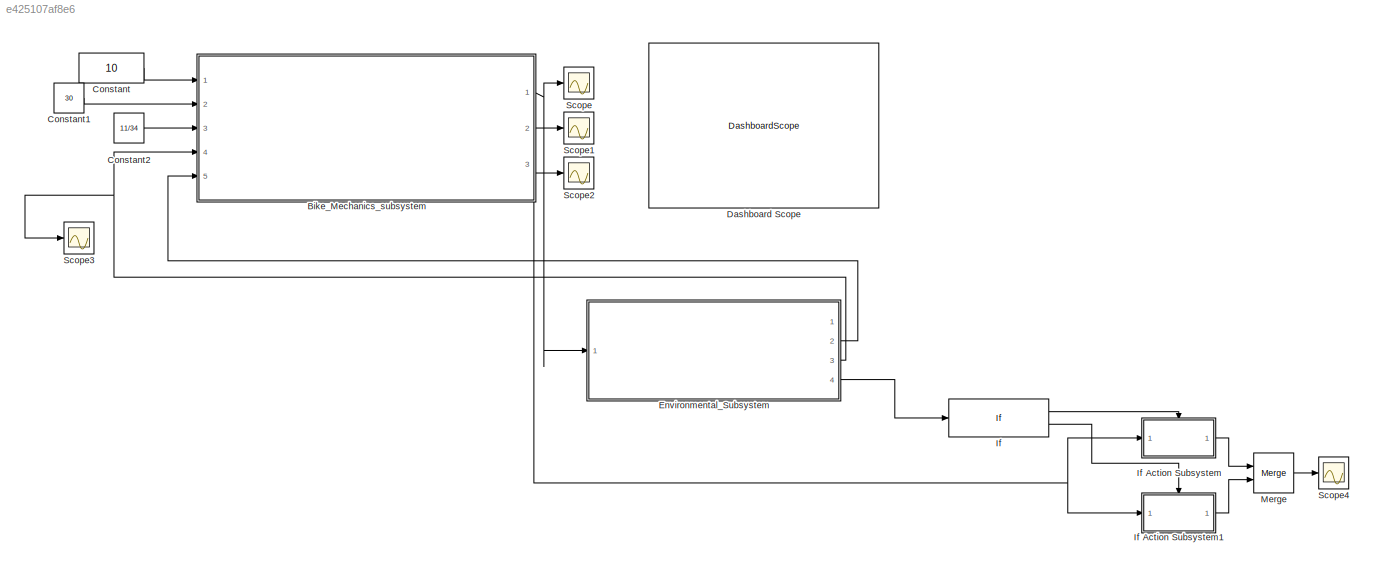
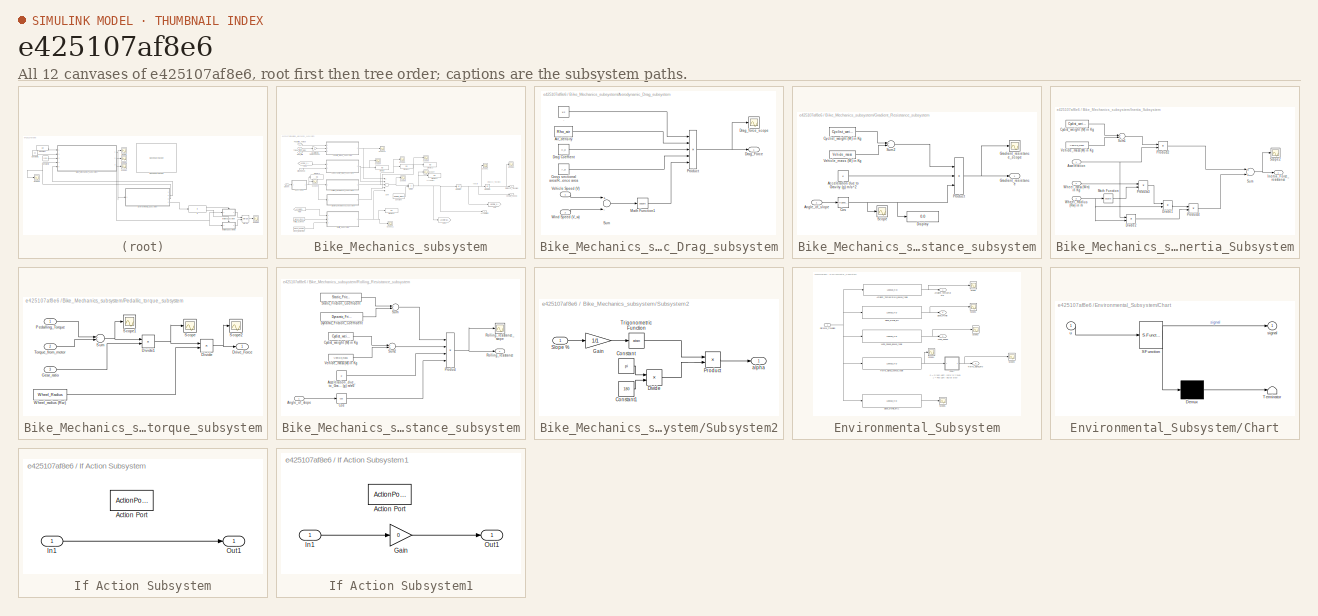
[diagram: thumbnail index - all 12 canvases of the model, root first then tree order]
MODEL slx_e425107af8e6
KIND model
CONFIG AbsTol = auto
CONFIG EnableMultiTasking = off
CONFIG FixedStep = auto
CONFIG InitFcn = Rho_air= 1.225;\nC_d=0.9;\nA_d= 0.4;\nStatic_Friction_Coefficient =0.0015;\nDynamic_Friction_Coefficient= 0.0015;\nCyclist_weight=85;\nVehicle_mass = 25;\ng = 9.81;\nWheel_mass = 0.20;\nWheel_Radius = 0.3;\n\n
CONFIG MaxStep = auto
CONFIG MinStep = auto
CONFIG RelTol = 1e-3
CONFIG SampleTimeConstraint = Unconstrained
CONFIG Solver = VariableStepAuto
CONFIG SolverName = VariableStepAuto
CONFIG StartTime = 0.0
CONFIG StopTime = 800
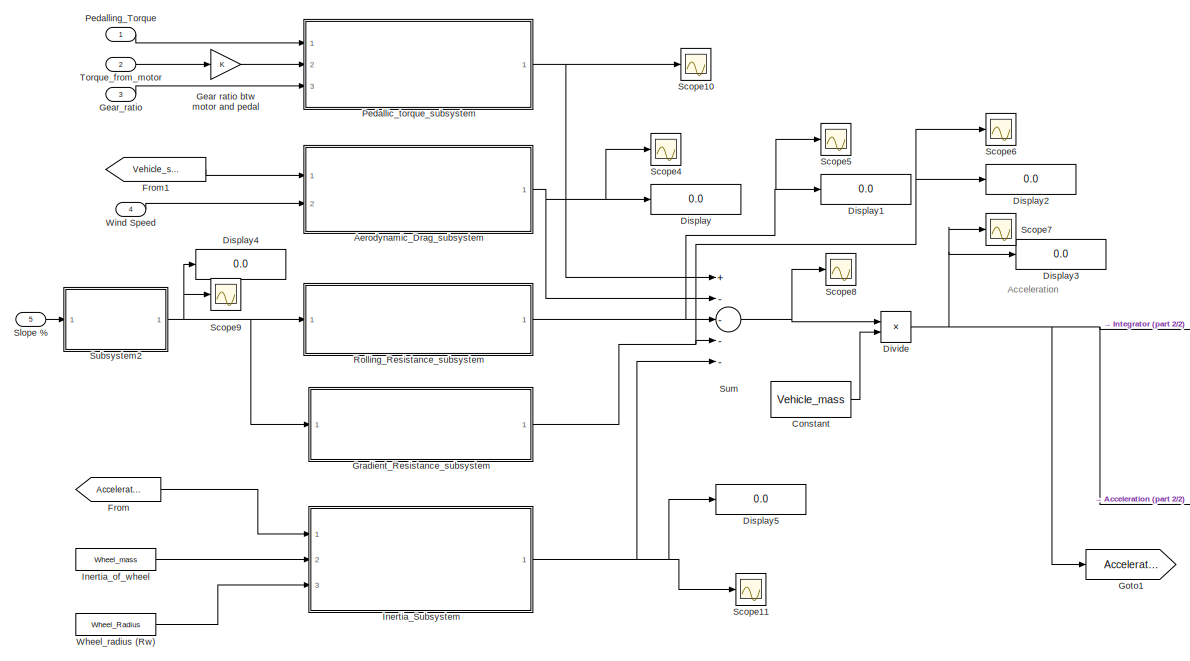
[diagram: Bike_Mechanics_subsystem - part 1/2, center side, full height]
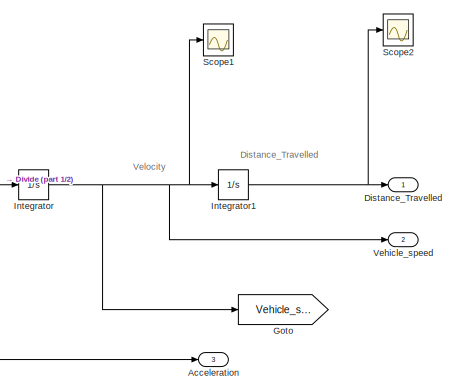
[diagram: Bike_Mechanics_subsystem - part 2/2, middle right region]
BLOCK [SubSystem] Bike_Mechanics_subsystem
  Ports = [5, 3]
  RequestExecContextInheritance = off
BLOCK [Outport] Bike_Mechanics_subsystem/Acceleration
  IconDisplay = Port number
  Port = 3
  VectorParamsAs1DForOutWhenUnconnected = off
BLOCK [SubSystem] Bike_Mechanics_subsystem/Aerodynamic_Drag_subsystem
  Ports = [2, 1]
  RequestExecContextInheritance = off
BLOCK [Constant] Bike_Mechanics_subsystem/Aerodynamic_Drag_subsystem/.
  Value = 1/2
BLOCK [Constant] Bike_Mechanics_subsystem/Aerodynamic_Drag_subsystem/Air_density
  Value = Rho_air
BLOCK [Constant] Bike_Mechanics_subsystem/Aerodynamic_Drag_subsystem/Cross sectional area//Reference area
  Value = A_d
BLOCK [Constant] Bike_Mechanics_subsystem/Aerodynamic_Drag_subsystem/Drag Coeffient
  Value = C_d
BLOCK [Outport] Bike_Mechanics_subsystem/Aerodynamic_Drag_subsystem/Drag_Force 
  IconDisplay = Port number
  VectorParamsAs1DForOutWhenUnconnected = off
BLOCK [Scope] Bike_Mechanics_subsystem/Aerodynamic_Drag_subsystem/Drag_force_scope
  Floating = off
  NumInputPorts = 1
  Ports = [1]
  ScopeSpecificationString = Simulink.scopes.TimeScopeBlockCfg('CurrentConfiguration', extmgr.ConfigurationSet(extmgr.Configuration('Core','General UI',true),extmgr.Configuration('Core','Source UI',true),extmgr.Configuration('Sources','WiredSimulink',true),extmgr.Configuration('Visuals','Time Domain',true,'SerializedDisplays',{struct('MinYLimReal','-15.22032','MaxYLimReal','136.98292','YLabelReal','','MinYLimMag','0.00000','M...<+1337ch>
BLOCK [Math] Bike_Mechanics_subsystem/Aerodynamic_Drag_subsystem/Math Function1
  Operator = square
  Ports = [1, 1]
BLOCK [Product] Bike_Mechanics_subsystem/Aerodynamic_Drag_subsystem/Product
  InputSameDT = off
  Inputs = 5
  OutDataTypeStr = Inherit: Inherit via internal rule
  Ports = [5, 1]
  RndMeth = Floor
  SaturateOnIntegerOverflow = off
BLOCK [Sum] Bike_Mechanics_subsystem/Aerodynamic_Drag_subsystem/Sum
  InputSameDT = off
  Inputs = +-
  OutDataTypeStr = Inherit: Inherit via internal rule
  Ports = [2, 1]
  SaturateOnIntegerOverflow = off
BLOCK [Inport] Bike_Mechanics_subsystem/Aerodynamic_Drag_subsystem/Vehicle Speed (V)
  IconDisplay = Port number
BLOCK [Inport] Bike_Mechanics_subsystem/Aerodynamic_Drag_subsystem/Wind Speed (V_w) 
  IconDisplay = Port number
  Port = 2
BLOCK [Constant] Bike_Mechanics_subsystem/Constant
  SampleTime = -1
  Value = Vehicle_mass
BLOCK [Display] Bike_Mechanics_subsystem/Display
  Decimation = 1
  Format = long
  Ports = [1]
BLOCK [Display] Bike_Mechanics_subsystem/Display1
  Decimation = 1
  Ports = [1]
BLOCK [Display] Bike_Mechanics_subsystem/Display2
  Decimation = 1
  Ports = [1]
BLOCK [Display] Bike_Mechanics_subsystem/Display3
  Decimation = 1
  Ports = [1]
BLOCK [Display] Bike_Mechanics_subsystem/Display4
  Decimation = 1
  Ports = [1]
BLOCK [Display] Bike_Mechanics_subsystem/Display5
  Decimation = 1
  Ports = [1]
BLOCK [Outport] Bike_Mechanics_subsystem/Distance_Travelled
  IconDisplay = Port number
  VectorParamsAs1DForOutWhenUnconnected = off
BLOCK [Product] Bike_Mechanics_subsystem/Divide
  InputSameDT = off
  Inputs = */
  OutDataTypeStr = Inherit: Inherit via internal rule
  Ports = [2, 1]
  RndMeth = Floor
  SaturateOnIntegerOverflow = off
BLOCK [From] Bike_Mechanics_subsystem/From
  GotoTag = Acceleration
BLOCK [From] Bike_Mechanics_subsystem/From1
  GotoTag = Vehicle_speed
BLOCK [Gain] Bike_Mechanics_subsystem/Gear ratio btw motor and pedal
  OutDataTypeStr = Inherit: Inherit via internal rule
  ParamDataTypeStr = Inherit: Inherit via internal rule
  SaturateOnIntegerOverflow = off
BLOCK [Inport] Bike_Mechanics_subsystem/Gear_ratio
  IconDisplay = Port number
  Port = 3
BLOCK [Goto] Bike_Mechanics_subsystem/Goto
  GotoTag = Vehicle_speed
BLOCK [Goto] Bike_Mechanics_subsystem/Goto1
  GotoTag = Acceleration
BLOCK [SubSystem] Bike_Mechanics_subsystem/Gradient_Resistance_subsystem
  Ports = [1, 1]
  RequestExecContextInheritance = off
BLOCK [Constant] Bike_Mechanics_subsystem/Gradient_Resistance_subsystem/Acceleration due to Gravity (g) m//s^2
  SampleTime = -1
  Value = g
BLOCK [Inport] Bike_Mechanics_subsystem/Gradient_Resistance_subsystem/Angle_of_slope
  IconDisplay = Port number
BLOCK [Trigonometry] Bike_Mechanics_subsystem/Gradient_Resistance_subsystem/Cos
  Ports = [1, 1]
BLOCK [Constant] Bike_Mechanics_subsystem/Gradient_Resistance_subsystem/Cyclist_weight (M) in Kg
  SampleTime = -1
  Value = Cyclist_weight
BLOCK [Display] Bike_Mechanics_subsystem/Gradient_Resistance_subsystem/Display
  Decimation = 1
  Ports = [1]
BLOCK [Outport] Bike_Mechanics_subsystem/Gradient_Resistance_subsystem/Gradient_resistance
  IconDisplay = Port number
  VectorParamsAs1DForOutWhenUnconnected = off
BLOCK [Scope] Bike_Mechanics_subsystem/Gradient_Resistance_subsystem/Gradient_resistance_scope
  Floating = off
  NumInputPorts = 1
  Ports = [1]
  ScopeSpecificationString = Simulink.scopes.TimeScopeBlockCfg('CurrentConfiguration', extmgr.ConfigurationSet(extmgr.Configuration('Core','General UI',true),extmgr.Configuration('Core','Source UI',true),extmgr.Configuration('Sources','WiredSimulink',true),extmgr.Configuration('Visuals','Time Domain',true,'SerializedDisplays',{struct('MinYLimReal','2.04176','MaxYLimReal','4.04176','YLabelReal','','MinYLimMag','2.04176','MaxYL...<+1325ch>
BLOCK [Product] Bike_Mechanics_subsystem/Gradient_Resistance_subsystem/Product
  InputSameDT = off
  Inputs = 3
  OutDataTypeStr = Inherit: Inherit via internal rule
  Ports = [3, 1]
  RndMeth = Floor
  SaturateOnIntegerOverflow = off
BLOCK [Scope] Bike_Mechanics_subsystem/Gradient_Resistance_subsystem/Scope
  Floating = off
  NumInputPorts = 1
  Ports = [1]
  ScopeSpecificationString = Simulink.scopes.TimeScopeBlockCfg('CurrentConfiguration', extmgr.ConfigurationSet(extmgr.Configuration('Core','General UI',true),extmgr.Configuration('Core','Source UI',true),extmgr.Configuration('Sources','WiredSimulink',true,'DataLoggingVariableName','ScopeData15'),extmgr.Configuration('Visuals','Time Domain',true),extmgr.Configuration('Tools','Plot Navigation',true),extmgr.Configuration('Tools'...<+41ch>
BLOCK [Sum] Bike_Mechanics_subsystem/Gradient_Resistance_subsystem/Sum2
  InputSameDT = off
  OutDataTypeStr = Inherit: Inherit via internal rule
  Ports = [2, 1]
  SaturateOnIntegerOverflow = off
BLOCK [Constant] Bike_Mechanics_subsystem/Gradient_Resistance_subsystem/Vehicle_mass (M) in Kg
  SampleTime = -1
  Value = Vehicle_mass
BLOCK [SubSystem] Bike_Mechanics_subsystem/Inertia_Subsystem
  Ports = [3, 1]
  RequestExecContextInheritance = off
BLOCK [Inport] Bike_Mechanics_subsystem/Inertia_Subsystem/Acceleration
  IconDisplay = Port number
BLOCK [Constant] Bike_Mechanics_subsystem/Inertia_Subsystem/Cyclist_weight (M) in Kg
  SampleTime = -1
  Value = Cyclist_weight
BLOCK [Product] Bike_Mechanics_subsystem/Inertia_Subsystem/Divide1
  InputSameDT = off
  Inputs = */
  OutDataTypeStr = Inherit: Inherit via internal rule
  Ports = [2, 1]
  RndMeth = Floor
  SaturateOnIntegerOverflow = off
BLOCK [Product] Bike_Mechanics_subsystem/Inertia_Subsystem/Divide2
  InputSameDT = off
  Inputs = */
  OutDataTypeStr = Inherit: Inherit via internal rule
  Ports = [2, 1]
  RndMeth = Floor
  SaturateOnIntegerOverflow = off
BLOCK [Outport] Bike_Mechanics_subsystem/Inertia_Subsystem/Inertia_Force_resistance
  IconDisplay = Port number
BLOCK [Math] Bike_Mechanics_subsystem/Inertia_Subsystem/Math Function
  Operator = square
  Ports = [1, 1]
BLOCK [Product] Bike_Mechanics_subsystem/Inertia_Subsystem/Product2
  InputSameDT = off
  OutDataTypeStr = Inherit: Inherit via internal rule
  Ports = [2, 1]
  RndMeth = Floor
  SaturateOnIntegerOverflow = off
BLOCK [Product] Bike_Mechanics_subsystem/Inertia_Subsystem/Product3
  InputSameDT = off
  OutDataTypeStr = Inherit: Inherit via internal rule
  Ports = [2, 1]
  RndMeth = Floor
  SaturateOnIntegerOverflow = off
BLOCK [Product] Bike_Mechanics_subsystem/Inertia_Subsystem/Product4
  InputSameDT = off
  OutDataTypeStr = Inherit: Inherit via internal rule
  Ports = [2, 1]
  RndMeth = Floor
  SaturateOnIntegerOverflow = off
BLOCK [Scope] Bike_Mechanics_subsystem/Inertia_Subsystem/Scope2
  Floating = off
  NumInputPorts = 1
  Ports = [1]
  ScopeSpecificationString = Simulink.scopes.TimeScopeBlockCfg('CurrentConfiguration', extmgr.ConfigurationSet(extmgr.Configuration('Core','General UI',true),extmgr.Configuration('Core','Source UI',true),extmgr.Configuration('Sources','WiredSimulink',true,'DataLoggingVariableName','ScopeData1'),extmgr.Configuration('Visuals','Time Domain',true,'SerializedDisplays',{struct('MinYLimReal','90.00000','MaxYLimReal','290.00000','YL...<+1386ch>
BLOCK [Sum] Bike_Mechanics_subsystem/Inertia_Subsystem/Sum
  InputSameDT = off
  OutDataTypeStr = Inherit: Inherit via internal rule
  Ports = [2, 1]
  SaturateOnIntegerOverflow = off
BLOCK [Sum] Bike_Mechanics_subsystem/Inertia_Subsystem/Sum1
  InputSameDT = off
  OutDataTypeStr = Inherit: Inherit via internal rule
  Ports = [2, 1]
  SaturateOnIntegerOverflow = off
BLOCK [Constant] Bike_Mechanics_subsystem/Inertia_Subsystem/Vehicle_mass (M) in Kg
  SampleTime = -1
  Value = Vehicle_mass
BLOCK [Inport] Bike_Mechanics_subsystem/Inertia_Subsystem/Wheel_Radius (Rw) in m
  IconDisplay = Port number
  Port = 3
BLOCK [Inport] Bike_Mechanics_subsystem/Inertia_Subsystem/Wheel_mass (Wm) in Kg
  IconDisplay = Port number
  Port = 2
BLOCK [Constant] Bike_Mechanics_subsystem/Inertia_of_wheel
  Value = Wheel_mass
BLOCK [Integrator] Bike_Mechanics_subsystem/Integrator
  Ports = [1, 1]
BLOCK [Integrator] Bike_Mechanics_subsystem/Integrator1
  Ports = [1, 1]
BLOCK [SubSystem] Bike_Mechanics_subsystem/Pedallic_torque_subsystem
  Ports = [3, 1]
  RequestExecContextInheritance = off
BLOCK [Product] Bike_Mechanics_subsystem/Pedallic_torque_subsystem/Divide
  InputSameDT = off
  Inputs = */
  OutDataTypeStr = Inherit: Inherit via internal rule
  Ports = [2, 1]
  RndMeth = Floor
  SaturateOnIntegerOverflow = off
BLOCK [Product] Bike_Mechanics_subsystem/Pedallic_torque_subsystem/Divide1
  InputSameDT = off
  Inputs = */
  OutDataTypeStr = Inherit: Inherit via internal rule
  Ports = [2, 1]
  RndMeth = Floor
  SaturateOnIntegerOverflow = off
BLOCK [Outport] Bike_Mechanics_subsystem/Pedallic_torque_subsystem/Drive_Force
  IconDisplay = Port number
  VectorParamsAs1DForOutWhenUnconnected = off
BLOCK [Inport] Bike_Mechanics_subsystem/Pedallic_torque_subsystem/Gear_ratio
  IconDisplay = Port number
  Port = 3
BLOCK [Inport] Bike_Mechanics_subsystem/Pedallic_torque_subsystem/Pedalling_Torque
  IconDisplay = Port number
BLOCK [Scope] Bike_Mechanics_subsystem/Pedallic_torque_subsystem/Scope
  Floating = off
  NumInputPorts = 1
  Ports = [1]
  ScopeSpecificationString = Simulink.scopes.TimeScopeBlockCfg('CurrentConfiguration', extmgr.ConfigurationSet(extmgr.Configuration('Core','General UI',true),extmgr.Configuration('Core','Source UI',true),extmgr.Configuration('Sources','WiredSimulink',true,'DataLoggingVariableName','ScopeData10'),extmgr.Configuration('Visuals','Time Domain',true,'SerializedDisplays',{struct('MinYLimReal','30.00000','MaxYLimReal','50.00000','YL...<+1374ch>
BLOCK [Scope] Bike_Mechanics_subsystem/Pedallic_torque_subsystem/Scope1
  Floating = off
  NumInputPorts = 1
  Ports = [1]
  ScopeSpecificationString = Simulink.scopes.TimeScopeBlockCfg('CurrentConfiguration', extmgr.ConfigurationSet(extmgr.Configuration('Core','General UI',true),extmgr.Configuration('Core','Source UI',true),extmgr.Configuration('Sources','WiredSimulink',true,'DataLoggingVariableName','ScopeData11'),extmgr.Configuration('Visuals','Time Domain',true,'SerializedDisplays',{struct('MinYLimReal','30.00000','MaxYLimReal','50.00000','YL...<+1369ch>
BLOCK [Scope] Bike_Mechanics_subsystem/Pedallic_torque_subsystem/Scope2
  Floating = off
  NumInputPorts = 1
  Ports = [1]
  ScopeSpecificationString = Simulink.scopes.TimeScopeBlockCfg('CurrentConfiguration', extmgr.ConfigurationSet(extmgr.Configuration('Core','General UI',true),extmgr.Configuration('Core','Source UI',true),extmgr.Configuration('Sources','WiredSimulink',true,'DataLoggingVariableName','ScopeData13'),extmgr.Configuration('Visuals','Time Domain',true,'SerializedDisplays',{struct('MinYLimReal','-15.625','MaxYLimReal','140.625','YLab...<+1364ch>
BLOCK [Sum] Bike_Mechanics_subsystem/Pedallic_torque_subsystem/Sum
  InputSameDT = off
  OutDataTypeStr = Inherit: Inherit via internal rule
  Ports = [2, 1]
  SaturateOnIntegerOverflow = off
BLOCK [Inport] Bike_Mechanics_subsystem/Pedallic_torque_subsystem/Torque_from_motor
  IconDisplay = Port number
  Port = 2
BLOCK [Constant] Bike_Mechanics_subsystem/Pedallic_torque_subsystem/Wheel_radius (Rw) 
  SampleTime = -1
  Value = Wheel_Radius
BLOCK [Inport] Bike_Mechanics_subsystem/Pedalling_Torque
  IconDisplay = Port number
BLOCK [SubSystem] Bike_Mechanics_subsystem/Rolling_Resistance_subsystem
  Ports = [1, 1]
  RequestExecContextInheritance = off
BLOCK [Constant] Bike_Mechanics_subsystem/Rolling_Resistance_subsystem/Acceleration_due_to_Gravity (g) m//s^2
  SampleTime = -1
  Value = g
BLOCK [Inport] Bike_Mechanics_subsystem/Rolling_Resistance_subsystem/Angle_of_slope
  IconDisplay = Port number
BLOCK [Trigonometry] Bike_Mechanics_subsystem/Rolling_Resistance_subsystem/Cos
  Operator = cos
  Ports = [1, 1]
BLOCK [Constant] Bike_Mechanics_subsystem/Rolling_Resistance_subsystem/Cyclist_weight (M) in Kg
  SampleTime = -1
  Value = Cyclist_weight
BLOCK [Constant] Bike_Mechanics_subsystem/Rolling_Resistance_subsystem/Dynamic_Friction_Coefficient
  SampleTime = -1
  Value = Dynamic_Friction_Coefficient
BLOCK [Product] Bike_Mechanics_subsystem/Rolling_Resistance_subsystem/Product
  InputSameDT = off
  Inputs = 4
  OutDataTypeStr = Inherit: Inherit via internal rule
  Ports = [4, 1]
  RndMeth = Floor
  SaturateOnIntegerOverflow = off
BLOCK [Outport] Bike_Mechanics_subsystem/Rolling_Resistance_subsystem/Rolling_resistance
  IconDisplay = Port number
  VectorParamsAs1DForOutWhenUnconnected = off
BLOCK [Scope] Bike_Mechanics_subsystem/Rolling_Resistance_subsystem/Rolling_resistance_scope
  Floating = off
  NumInputPorts = 1
  Ports = [1]
  ScopeSpecificationString = Simulink.scopes.TimeScopeBlockCfg('CurrentConfiguration', extmgr.ConfigurationSet(extmgr.Configuration('Core','General UI',true),extmgr.Configuration('Core','Source UI',true),extmgr.Configuration('Sources','WiredSimulink',true),extmgr.Configuration('Visuals','Time Domain',true,'SerializedDisplays',{struct('MinYLimReal','2.2373','MaxYLimReal','4.2373','YLabelReal','','MinYLimMag','2.2373','MaxYLimM...<+1352ch>
BLOCK [Constant] Bike_Mechanics_subsystem/Rolling_Resistance_subsystem/Static_Friction_Coefficient
  SampleTime = -1
  Value = Static_Friction_Coefficient
BLOCK [Sum] Bike_Mechanics_subsystem/Rolling_Resistance_subsystem/Sum
  InputSameDT = off
  Inputs = +|+
  OutDataTypeStr = Inherit: Inherit via internal rule
  Ports = [2, 1]
  SaturateOnIntegerOverflow = off
BLOCK [Sum] Bike_Mechanics_subsystem/Rolling_Resistance_subsystem/Sum2
  InputSameDT = off
  OutDataTypeStr = Inherit: Inherit via internal rule
  Ports = [2, 1]
  SaturateOnIntegerOverflow = off
BLOCK [Constant] Bike_Mechanics_subsystem/Rolling_Resistance_subsystem/Vehicle_mass (M) in Kg
  SampleTime = -1
  Value = Vehicle_mass
BLOCK [Scope] Bike_Mechanics_subsystem/Scope1
  Floating = off
  NumInputPorts = 1
  Ports = [1]
  ScopeSpecificationString = Simulink.scopes.TimeScopeBlockCfg('CurrentConfiguration', extmgr.ConfigurationSet(extmgr.Configuration('Core','General UI',true,'FigureColor',[1 1 1]),extmgr.Configuration('Core','Source UI',true),extmgr.Configuration('Sources','WiredSimulink',true,'DataLoggingVariableName','ScopeData2'),extmgr.Configuration('Visuals','Time Domain',true,'SerializedDisplays',{struct('MinYLimReal','-7.5132','MaxYLim...<+1674ch>
BLOCK [Scope] Bike_Mechanics_subsystem/Scope10
  Floating = off
  NumInputPorts = 1
  Ports = [1]
  ScopeSpecificationString = Simulink.scopes.TimeScopeBlockCfg('CurrentConfiguration', extmgr.ConfigurationSet(extmgr.Configuration('Core','General UI',true),extmgr.Configuration('Core','Source UI',true),extmgr.Configuration('Sources','WiredSimulink',true,'DataLoggingVariableName','ScopeData3'),extmgr.Configuration('Visuals','Time Domain',true,'SerializedDisplays',{struct('MinYLimReal','33.13725','MaxYLimReal','53.13725','YLa...<+1496ch>
BLOCK [Scope] Bike_Mechanics_subsystem/Scope11
  Floating = off
  NumInputPorts = 1
  Ports = [1]
  ScopeSpecificationString = Simulink.scopes.TimeScopeBlockCfg('CurrentConfiguration', extmgr.ConfigurationSet(extmgr.Configuration('Core','General UI',true),extmgr.Configuration('Core','Source UI',true),extmgr.Configuration('Sources','WiredSimulink',true,'DataLoggingVariableName','ScopeData4'),extmgr.Configuration('Visuals','Time Domain',true,'SerializedDisplays',{struct('MinYLimReal','-81.27058','MaxYLimReal','138.17866','Y...<+1438ch>
BLOCK [Scope] Bike_Mechanics_subsystem/Scope2
  Floating = off
  NumInputPorts = 1
  Ports = [1]
  ScopeSpecificationString = Simulink.scopes.TimeScopeBlockCfg('CurrentConfiguration', extmgr.ConfigurationSet(extmgr.Configuration('Core','General UI',true),extmgr.Configuration('Core','Source UI',true),extmgr.Configuration('Sources','WiredSimulink',true,'DataLoggingVariableName','ScopeData5'),extmgr.Configuration('Visuals','Time Domain',true,'SerializedDisplays',{struct('MinYLimReal','-2968.22015','MaxYLimReal','26713.98135...<+1396ch>
BLOCK [Scope] Bike_Mechanics_subsystem/Scope4
  Floating = off
  NumInputPorts = 1
  Ports = [1]
  ScopeSpecificationString = Simulink.scopes.TimeScopeBlockCfg('CurrentConfiguration', extmgr.ConfigurationSet(extmgr.Configuration('Core','General UI',true),extmgr.Configuration('Core','Source UI',true),extmgr.Configuration('Sources','WiredSimulink',true,'DataLoggingVariableName','ScopeData7'),extmgr.Configuration('Visuals','Time Domain',true,'SerializedDisplays',{struct('MinYLimReal','-0.27396','MaxYLimReal','0.07202','YLab...<+1431ch>
BLOCK [Scope] Bike_Mechanics_subsystem/Scope5
  Floating = off
  NumInputPorts = 1
  Ports = [1]
  ScopeSpecificationString = Simulink.scopes.TimeScopeBlockCfg('CurrentConfiguration', extmgr.ConfigurationSet(extmgr.Configuration('Core','General UI',true),extmgr.Configuration('Core','Source UI',true),extmgr.Configuration('Sources','WiredSimulink',true,'DataLoggingVariableName','ScopeData8'),extmgr.Configuration('Visuals','Time Domain',true,'SerializedDisplays',{struct('MinYLimReal','2.64842','MaxYLimReal','2.64873','YLabe...<+1412ch>
BLOCK [Scope] Bike_Mechanics_subsystem/Scope6
  Floating = off
  NumInputPorts = 1
  Ports = [1]
  ScopeSpecificationString = Simulink.scopes.TimeScopeBlockCfg('CurrentConfiguration', extmgr.ConfigurationSet(extmgr.Configuration('Core','General UI',true),extmgr.Configuration('Core','Source UI',true),extmgr.Configuration('Sources','WiredSimulink',true,'DataLoggingVariableName','ScopeData9'),extmgr.Configuration('Visuals','Time Domain',true,'SerializedDisplays',{struct('MinYLimReal','-1.51275','MaxYLimReal','13.61476','YLa...<+1392ch>
BLOCK [Scope] Bike_Mechanics_subsystem/Scope7
  Floating = off
  NumInputPorts = 1
  Ports = [1]
  ScopeSpecificationString = Simulink.scopes.TimeScopeBlockCfg('CurrentConfiguration', extmgr.ConfigurationSet(extmgr.Configuration('Core','General UI',true),extmgr.Configuration('Core','Source UI',true),extmgr.Configuration('Sources','WiredSimulink',true,'DataLoggingVariableName','ScopeData10'),extmgr.Configuration('Visuals','Time Domain',true,'SerializedDisplays',{struct('MinYLimReal','-0.15955','MaxYLimReal','1.43598','YLa...<+1366ch>
BLOCK [Scope] Bike_Mechanics_subsystem/Scope8
  Floating = off
  NumInputPorts = 1
  Ports = [1]
  ScopeSpecificationString = Simulink.scopes.TimeScopeBlockCfg('CurrentConfiguration', extmgr.ConfigurationSet(extmgr.Configuration('Core','General UI',true),extmgr.Configuration('Core','Source UI',true),extmgr.Configuration('Sources','WiredSimulink',true,'DataLoggingVariableName','ScopeData11'),extmgr.Configuration('Visuals','Time Domain',true,'SerializedDisplays',{struct('MinYLimReal','6270.86832','MaxYLimReal','26270.86832...<+1389ch>
BLOCK [Scope] Bike_Mechanics_subsystem/Scope9
  Floating = off
  NumInputPorts = 1
  Ports = [1]
  ScopeSpecificationString = Simulink.scopes.TimeScopeBlockCfg('CurrentConfiguration', extmgr.ConfigurationSet(extmgr.Configuration('Core','General UI',true),extmgr.Configuration('Core','Source UI',true),extmgr.Configuration('Sources','WiredSimulink',true,'DataLoggingVariableName','ScopeData12'),extmgr.Configuration('Visuals','Time Domain',true,'SerializedDisplays',{struct('MinYLimReal','-1.00000','MaxYLimReal','1.00000','YLa...<+1432ch>
BLOCK [Inport] Bike_Mechanics_subsystem/Slope %
  IconDisplay = Port number
  Port = 5
BLOCK [SubSystem] Bike_Mechanics_subsystem/Subsystem2
  Ports = [1, 1]
  RequestExecContextInheritance = off
BLOCK [Constant] Bike_Mechanics_subsystem/Subsystem2/Constant
  SampleTime = -1
  Value = pi
BLOCK [Constant] Bike_Mechanics_subsystem/Subsystem2/Constant1
  Value = 180
BLOCK [Product] Bike_Mechanics_subsystem/Subsystem2/Divide
  InputSameDT = off
  Inputs = */
  OutDataTypeStr = Inherit: Inherit via internal rule
  Ports = [2, 1]
  RndMeth = Floor
  SaturateOnIntegerOverflow = off
BLOCK [Gain] Bike_Mechanics_subsystem/Subsystem2/Gain
  Gain = 1/1
  OutDataTypeStr = Inherit: Inherit via internal rule
  ParamDataTypeStr = Inherit: Inherit via internal rule
  SaturateOnIntegerOverflow = off
BLOCK [Product] Bike_Mechanics_subsystem/Subsystem2/Product
  InputSameDT = off
  OutDataTypeStr = Inherit: Inherit via internal rule
  Ports = [2, 1]
  RndMeth = Floor
  SaturateOnIntegerOverflow = off
BLOCK [Inport] Bike_Mechanics_subsystem/Subsystem2/Slope %
  IconDisplay = Port number
BLOCK [Trigonometry] Bike_Mechanics_subsystem/Subsystem2/Trigonometric Function
  Operator = atan
  Ports = [1, 1]
BLOCK [Outport] Bike_Mechanics_subsystem/Subsystem2/alpha
  IconDisplay = Port number
  VectorParamsAs1DForOutWhenUnconnected = off
BLOCK [Sum] Bike_Mechanics_subsystem/Sum
  InputSameDT = off
  Inputs = +----
  OutDataTypeStr = Inherit: Inherit via internal rule
  Ports = [5, 1]
  SaturateOnIntegerOverflow = off
BLOCK [Inport] Bike_Mechanics_subsystem/Torque_from_motor
  IconDisplay = Port number
  Port = 2
BLOCK [Outport] Bike_Mechanics_subsystem/Vehicle_speed
  IconDisplay = Port number
  Port = 2
  VectorParamsAs1DForOutWhenUnconnected = off
BLOCK [Constant] Bike_Mechanics_subsystem/Wheel_radius (Rw) 
  Value = Wheel_Radius
BLOCK [Inport] Bike_Mechanics_subsystem/Wind Speed
  IconDisplay = Port number
  Port = 4
BLOCK [Constant] Constant
  SampleTime = -1
  Value = 10
BLOCK [Constant] Constant1
  SampleTime = -1
  Value = 30
BLOCK [Constant] Constant2
  SampleTime = -1
  Value = 11/34
BLOCK [DashboardScope] Dashboard Scope
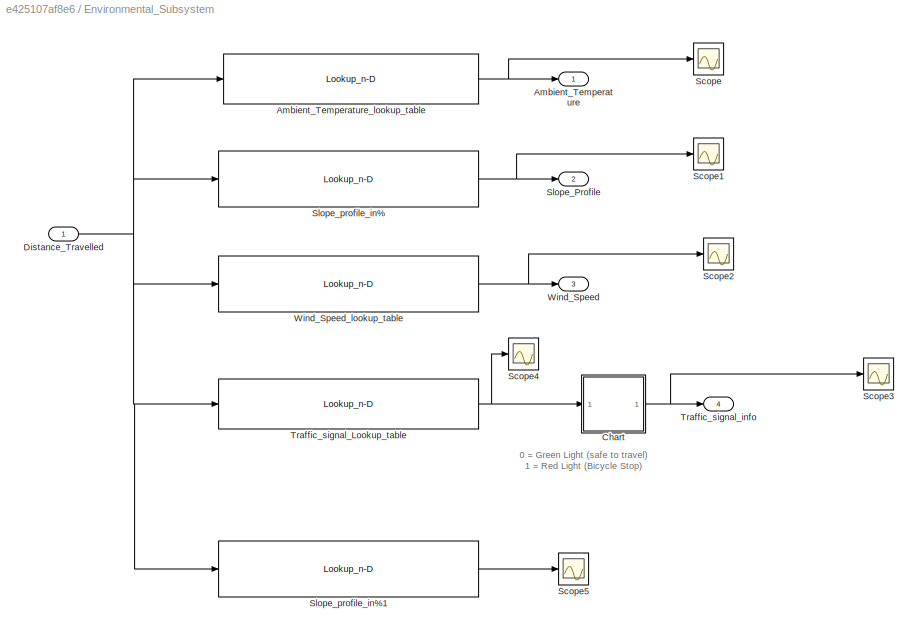
BLOCK [SubSystem] Environmental_Subsystem
  Ports = [1, 4]
  RequestExecContextInheritance = off
BLOCK [Outport] Environmental_Subsystem/Ambient_Temperature
  IconDisplay = Port number
  VectorParamsAs1DForOutWhenUnconnected = off
BLOCK [Lookup_n-D] Environmental_Subsystem/Ambient_Temperature_lookup_table
  BreakpointsForDimension1 = [0 6000 12000]
  InternalRulePriority = Speed
  NumberOfTableDimensions = 1
  Ports = [1, 1]
  RndMeth = Simplest
  Table = [25 24 25]
BLOCK [SubSystem] Environmental_Subsystem/Chart
  BlockKeywords = __PRM__SERIALIZED__DATA__:Stateflow Chart,Stateflow Diagram
  ErrorFcn = Stateflow.Translate.translate
  PermitHierarchicalResolution = ExplicitOnly
  Ports = [1, 1]
  RequestExecContextInheritance = off
  SFBlockType = Chart
  TreatAsAtomicUnit = on
BLOCK [Demux] Environmental_Subsystem/Chart/ Demux 
  Outputs = 1
  Ports = [1, 1]
BLOCK [S-Function] Environmental_Subsystem/Chart/ SFunction 
  EnableBusSupport = on
  FunctionName = sf_sfun
  PortCounts = [1 2]
  Ports = [1, 2]
  SFcnIsStateOwnerBlock = off
  SFunctionDeploymentMode = off
  Tag = Stateflow S-Function 3
BLOCK [Terminator] Environmental_Subsystem/Chart/ Terminator 
BLOCK [Outport] Environmental_Subsystem/Chart/signal
  IconDisplay = Port number
BLOCK [Inport] Environmental_Subsystem/Chart/u
  IconDisplay = Port number
BLOCK [Inport] Environmental_Subsystem/Distance_Travelled
  IconDisplay = Port number
BLOCK [Scope] Environmental_Subsystem/Scope
  Floating = off
  NumInputPorts = 1
  Ports = [1]
  ScopeSpecificationString = Simulink.scopes.TimeScopeBlockCfg('CurrentConfiguration', extmgr.ConfigurationSet(extmgr.Configuration('Core','General UI',true),extmgr.Configuration('Core','Source UI',true),extmgr.Configuration('Sources','WiredSimulink',true),extmgr.Configuration('Visuals','Time Domain',true,'SerializedDisplays',{struct('MinYLimReal','23.875','MaxYLimReal','25.125','YLabelReal','','MinYLimMag','23.875','MaxYLimM...<+1400ch>
BLOCK [Scope] Environmental_Subsystem/Scope1
  Floating = off
  NumInputPorts = 1
  Ports = [1]
  ScopeSpecificationString = Simulink.scopes.TimeScopeBlockCfg('CurrentConfiguration', extmgr.ConfigurationSet(extmgr.Configuration('Core','General UI',true),extmgr.Configuration('Core','Source UI',true),extmgr.Configuration('Sources','WiredSimulink',true,'DataLoggingVariableName','ScopeData1'),extmgr.Configuration('Visuals','Time Domain',true,'SerializedDisplays',{struct('MinYLimReal','-0.12497','MaxYLimReal','1.12476','YLab...<+1403ch>
BLOCK [Scope] Environmental_Subsystem/Scope2
  Floating = off
  NumInputPorts = 1
  Ports = [1]
  ScopeSpecificationString = Simulink.scopes.TimeScopeBlockCfg('CurrentConfiguration', extmgr.ConfigurationSet(extmgr.Configuration('Core','General UI',true),extmgr.Configuration('Core','Source UI',true),extmgr.Configuration('Sources','WiredSimulink',true,'DataLoggingVariableName','ScopeData2'),extmgr.Configuration('Visuals','Time Domain',true,'SerializedDisplays',{struct('MinYLimReal','-21.25','MaxYLimReal','21.25','YLabelRe...<+1383ch>
BLOCK [Scope] Environmental_Subsystem/Scope3
  Floating = off
  NumInputPorts = 1
  Ports = [1]
  ScopeSpecificationString = Simulink.scopes.TimeScopeBlockCfg('CurrentConfiguration', extmgr.ConfigurationSet(extmgr.Configuration('Core','General UI',true,'FigureColor',[1 1 1]),extmgr.Configuration('Core','Source UI',true),extmgr.Configuration('Sources','WiredSimulink',true,'DataLoggingVariableName','ScopeData2'),extmgr.Configuration('Visuals','Time Domain',true,'SerializedDisplays',{struct('MinYLimReal','-0.125','MaxYLimR...<+1755ch>
BLOCK [Scope] Environmental_Subsystem/Scope4
  Floating = off
  NumInputPorts = 1
  Ports = [1]
  ScopeSpecificationString = Simulink.scopes.TimeScopeBlockCfg('CurrentConfiguration', extmgr.ConfigurationSet(extmgr.Configuration('Core','General UI',true),extmgr.Configuration('Core','Source UI',true),extmgr.Configuration('Sources','WiredSimulink',true,'DataLoggingVariableName','ScopeData1'),extmgr.Configuration('Visuals','Time Domain',true,'SerializedDisplays',{struct('MinYLimReal','-0.125','MaxYLimReal','1.125','YLabelRe...<+1444ch>
BLOCK [Scope] Environmental_Subsystem/Scope5
  Floating = off
  NumInputPorts = 1
  Ports = [1]
  ScopeSpecificationString = Simulink.scopes.TimeScopeBlockCfg('CurrentConfiguration', extmgr.ConfigurationSet(extmgr.Configuration('Core','General UI',true),extmgr.Configuration('Core','Source UI',true),extmgr.Configuration('Sources','WiredSimulink',true,'DataLoggingVariableName','ScopeData1'),extmgr.Configuration('Visuals','Time Domain',true,'SerializedDisplays',{struct('MinYLimReal','7.5','MaxYLimReal','42.5','YLabelReal',...<+1475ch>
BLOCK [Outport] Environmental_Subsystem/Slope_Profile
  IconDisplay = Port number
  Port = 2
  VectorParamsAs1DForOutWhenUnconnected = off
BLOCK [Lookup_n-D] Environmental_Subsystem/Slope_profile_in%
  BreakpointsForDimension1 = [0000,\n0015,\n0056,\n0099,\n0108,\n0118,\n0132,\n0142,\n0160,\n0170,\n0186,\n0228,\n0293,\n0336,\n0363,\n0381,\n0391,\n0402,\n0437,\n0478,\n0538,\n0565,\n0582,\n0591,\n0611,\n0640,\n0675,\n0684,\n0699,\n0757,\n0777,\n0788,\n0820,\n0823,\n0837,\n0841,\n0863,\n0880,\n0900,\n0918,\n0948,\n0985,\n1016,\n1037,\n1051,\n1061,\n1082,\n1113,\n1134,\n1142,\n1151,\n1165,\n1176,\n1187,\n1200,\n1216,\n1234,\n1277,\n1341,\n1373,\n1401,\n1452,\n1486,\n1497,\n1507,\n1520,\n152...<+1346ch>
  InternalRulePriority = Speed
  NumberOfTableDimensions = 1
  Ports = [1, 1]
  RndMeth = Simplest
  Table = [0,\n0.487804878,\n0.23255814,\n0,\n1,\n0,\n0,\n0,\n0,\n0,\n0.714285714,\n0.769230769,\n0.697674419,\n0.740740741,\n0,\n0,\n0,\n0.285714286,\n0.243902439,\n0.166666667,\n0.37037037,\n0.588235294,\n0,\n0,\n0,\n0,\n0,\n0,\n0.344827586,\n0,\n0,\n0.3125,\n0,\n0.714285714,\n0,\n0,\n0,\n0,\n0,\n0.333333333,\n0.27027027,\n0,\n0,\n0,\n1,\n0,\n0,\n0,\n0,\n0,\n0,\n0,\n0,\n0,\n0,\n0,\n0,\n0,\n0.3125,\n0,\n0,\n0,\n0,\n0,\n0,\n0,\n0.344827586,\n0,\n0,\n0,\n0,\n0,\n0,\n0,\n0,\n0,\n0,\n0...<+954ch>
BLOCK [Lookup_n-D] Environmental_Subsystem/Slope_profile_in%1
  BreakpointsForDimension1 = [0000,\n0015,\n0056,\n0099,\n0108,\n0118,\n0132,\n0142,\n0160,\n0170,\n0186,\n0228,\n0293,\n0336,\n0363,\n0381,\n0391,\n0402,\n0437,\n0478,\n0538,\n0565,\n0582,\n0591,\n0611,\n0640,\n0675,\n0684,\n0699,\n0757,\n0777,\n0788,\n0820,\n0823,\n0837,\n0841,\n0863,\n0880,\n0900,\n0918,\n0948,\n0985,\n1016,\n1037,\n1051,\n1061,\n1082,\n1113,\n1134,\n1142,\n1151,\n1165,\n1176,\n1187,\n1200,\n1216,\n1234,\n1277,\n1341,\n1373,\n1401,\n1452,\n1486,\n1497,\n1507,\n1520,\n152...<+1346ch>
  IndexSearchMethod = Linear search
  InternalRulePriority = Speed
  NumberOfTableDimensions = 1
  Ports = [1, 1]
  RndMeth = Simplest
  Table = [39,\n39,\n37,\n36,\n36,\n35,\n35,\n35,\n35,\n35,\n35,\n32,\n27,\n24,\n22,\n22,\n22,\n22,\n21,\n20,\n19,\n18,\n17,\n17,\n17,\n17,\n17,\n17,\n17,\n15,\n15,\n15,\n14,\n14,\n13,\n13,\n13,\n13,\n13,\n13,\n14,\n15,\n15,\n15,\n15,\n14,\n14,\n14,\n14,\n14,\n14,\n14,\n14,\n14,\n14,\n14,\n14,\n14,\n14,\n15,\n15,\n15,\n15,\n15,\n15,\n15,\n15,\n16,\n16,\n16,\n16,\n16,\n16,\n16,\n16,\n16,\n16,\n16,\n16,\n15,\n15,\n15,\n15,\n15,\n15,\n15,\n15,\n15,\n15,\n15,\n15,\n15,\n16,\n16,\n16,\n16,\n15,\n15,\n15,\n15,...<+721ch>
BLOCK [Lookup_n-D] Environmental_Subsystem/Traffic_signal_Lookup_table
  BreakpointsForDimension1 = [0,\n1352.604,\n1352.624,\n1352.644,\n2594.125,\n2594.145,\n2594.165,\n5283.812,\n5283.832,\n5283.852,\n7423.782,\n7423.802,\n7423.822,\n9090.133,\n9090.153,\n9090.173,\n9442.834,\n9442.854,\n9442.874,\n9911.784,\n9911.804,\n9911.824,\n10337.11,\n10337.31,\n10337.51,\n10698.74,\n10698.94,\n10699.14,\n11070.92,\n11071.12,\n11071.32,\n11082.84,\n11083.04,\n11083.24,\n11800\n]
  InternalRulePriority = Speed
  NumberOfTableDimensions = 1
  Ports = [1, 1]
  RndMeth = Simplest
  Table = [\n0,\n0,\n1,\n0,\n0,\n1,\n0,\n0,\n1,\n0,\n0,\n1,\n0,\n0,\n1,\n0,\n0,\n1,\n0,\n0,\n1,\n0,\n0,\n1,\n0,\n0,\n1,\n0,\n0,\n1,\n0,\n0,\n1,\n0,\n0]
BLOCK [Outport] Environmental_Subsystem/Traffic_signal_info
  IconDisplay = Port number
  Port = 4
  VectorParamsAs1DForOutWhenUnconnected = off
BLOCK [Outport] Environmental_Subsystem/Wind_Speed
  IconDisplay = Port number
  Port = 3
  VectorParamsAs1DForOutWhenUnconnected = off
BLOCK [Lookup_n-D] Environmental_Subsystem/Wind_Speed_lookup_table
  BreakpointsForDimension1 = [0 5999.9 6000 12000]
  InternalRulePriority = Speed
  NumberOfTableDimensions = 1
  Ports = [1, 1]
  RndMeth = Simplest
  Table = [17 17 -17 -17]
BLOCK [If] If
  IfExpression = u1 == 0
  Ports = [1, 2]
BLOCK [SubSystem] If Action Subsystem
  Ports = [1, 1, 0, 0, 0, 0, 0, 1]
  RequestExecContextInheritance = off
  TreatAsAtomicUnit = on
BLOCK [ActionPort] If Action Subsystem/Action Port
  ActionPortLabel = if(u1 == 0)
BLOCK [Inport] If Action Subsystem/In1
  IconDisplay = Port number
BLOCK [Outport] If Action Subsystem/Out1
  IconDisplay = Port number
BLOCK [SubSystem] If Action Subsystem1
  Ports = [1, 1, 0, 0, 0, 0, 0, 1]
  RequestExecContextInheritance = off
  TreatAsAtomicUnit = on
BLOCK [ActionPort] If Action Subsystem1/Action Port
  ActionPortLabel = else
BLOCK [Gain] If Action Subsystem1/Gain
  Gain = 0
  OutDataTypeStr = Inherit: Inherit via internal rule
  ParamDataTypeStr = Inherit: Inherit via internal rule
  SaturateOnIntegerOverflow = off
BLOCK [Inport] If Action Subsystem1/In1
  IconDisplay = Port number
BLOCK [Outport] If Action Subsystem1/Out1
  IconDisplay = Port number
BLOCK [Merge] Merge
  Ports = [2, 1]
BLOCK [Scope] Scope
  Floating = off
  NumInputPorts = 1
  Ports = [1]
  ScopeSpecificationString = Simulink.scopes.TimeScopeBlockCfg('CurrentConfiguration', extmgr.ConfigurationSet(extmgr.Configuration('Core','General UI',true),extmgr.Configuration('Core','Source UI',true),extmgr.Configuration('Sources','WiredSimulink',true,'DataLoggingVariableName','ScopeData2'),extmgr.Configuration('Visuals','Time Domain',true,'SerializedDisplays',{struct('MinYLimReal','-2367.5081','MaxYLimReal','21307.5729',...<+1432ch>
BLOCK [Scope] Scope1
  Floating = off
  NumInputPorts = 1
  Ports = [1]
  ScopeSpecificationString = Simulink.scopes.TimeScopeBlockCfg('CurrentConfiguration', extmgr.ConfigurationSet(extmgr.Configuration('Core','General UI',true),extmgr.Configuration('Core','Source UI',true),extmgr.Configuration('Sources','WiredSimulink',true,'DataLoggingVariableName','ScopeData3'),extmgr.Configuration('Visuals','Time Domain',true,'SerializedDisplays',{struct('MinYLimReal','-7.47503','MaxYLimReal','67.27531','YLa...<+1468ch>
BLOCK [Scope] Scope2
  Floating = off
  NumInputPorts = 1
  Ports = [1]
  ScopeSpecificationString = Simulink.scopes.TimeScopeBlockCfg('CurrentConfiguration', extmgr.ConfigurationSet(extmgr.Configuration('Core','General UI',true),extmgr.Configuration('Core','Source UI',true),extmgr.Configuration('Sources','WiredSimulink',true,'DataLoggingVariableName','ScopeData4'),extmgr.Configuration('Visuals','Time Domain',true),extmgr.Configuration('Tools','Plot Navigation',true),extmgr.Configuration('Tools',...<+40ch>
BLOCK [Scope] Scope3
  Floating = off
  NumInputPorts = 1
  Ports = [1]
  ScopeSpecificationString = Simulink.scopes.TimeScopeBlockCfg('CurrentConfiguration', extmgr.ConfigurationSet(extmgr.Configuration('Core','General UI',true),extmgr.Configuration('Core','Source UI',true),extmgr.Configuration('Sources','WiredSimulink',true,'DataLoggingVariableName','ScopeData2'),extmgr.Configuration('Visuals','Time Domain',true,'SerializedDisplays',{struct('MinYLimReal','-6.875','MaxYLimReal','6.875','YLabelRe...<+1385ch>
BLOCK [Scope] Scope4
  Floating = off
  NumInputPorts = 1
  Ports = [1]
  ScopeSpecificationString = Simulink.scopes.TimeScopeBlockCfg('CurrentConfiguration', extmgr.ConfigurationSet(extmgr.Configuration('Core','General UI',true),extmgr.Configuration('Core','Source UI',true),extmgr.Configuration('Sources','WiredSimulink',true,'DataLoggingVariableName','ScopeData1'),extmgr.Configuration('Visuals','Time Domain',true,'SerializedDisplays',{struct('MinYLimReal','-5.16022','MaxYLimReal','46.44201','YLa...<+1497ch>
ANNOTATION Bike_Mechanics_subsystem: Acceleration
ANNOTATION Bike_Mechanics_subsystem: Distance_Travelled
ANNOTATION Bike_Mechanics_subsystem: Velocity
ANNOTATION Environmental_Subsystem: 0 = Green Light (safe to travel) 1 = Red Light (Bicycle Stop)
LINE Bike_Mechanics_subsystem/Aerodynamic_Drag_subsystem/.:1 -> Bike_Mechanics_subsystem/Aerodynamic_Drag_subsystem/Product:1
LINE Bike_Mechanics_subsystem/Aerodynamic_Drag_subsystem/Air_density:1 -> Bike_Mechanics_subsystem/Aerodynamic_Drag_subsystem/Product:2
LINE Bike_Mechanics_subsystem/Aerodynamic_Drag_subsystem/Cross sectional area//Reference area:1 -> Bike_Mechanics_subsystem/Aerodynamic_Drag_subsystem/Product:4
LINE Bike_Mechanics_subsystem/Aerodynamic_Drag_subsystem/Drag Coeffient:1 -> Bike_Mechanics_subsystem/Aerodynamic_Drag_subsystem/Product:3
LINE Bike_Mechanics_subsystem/Aerodynamic_Drag_subsystem/Math Function1:1 -> Bike_Mechanics_subsystem/Aerodynamic_Drag_subsystem/Product:5
NET Bike_Mechanics_subsystem/Aerodynamic_Drag_subsystem/Product:1 -> Bike_Mechanics_subsystem/Aerodynamic_Drag_subsystem/Drag_Force :1, Bike_Mechanics_subsystem/Aerodynamic_Drag_subsystem/Drag_force_scope:1
LINE Bike_Mechanics_subsystem/Aerodynamic_Drag_subsystem/Sum:1 -> Bike_Mechanics_subsystem/Aerodynamic_Drag_subsystem/Math Function1:1
LINE Bike_Mechanics_subsystem/Aerodynamic_Drag_subsystem/Vehicle Speed (V):1 -> Bike_Mechanics_subsystem/Aerodynamic_Drag_subsystem/Sum:1
LINE Bike_Mechanics_subsystem/Aerodynamic_Drag_subsystem/Wind Speed (V_w) :1 -> Bike_Mechanics_subsystem/Aerodynamic_Drag_subsystem/Sum:2
NET Bike_Mechanics_subsystem/Aerodynamic_Drag_subsystem:1 -> Bike_Mechanics_subsystem/Display:1, Bike_Mechanics_subsystem/Scope4:1, Bike_Mechanics_subsystem/Sum:2
LINE Bike_Mechanics_subsystem/Constant:1 -> Bike_Mechanics_subsystem/Divide:2
NET Bike_Mechanics_subsystem/Divide:1 -> Bike_Mechanics_subsystem/Acceleration:1, Bike_Mechanics_subsystem/Display3:1, Bike_Mechanics_subsystem/Goto1:1, Bike_Mechanics_subsystem/Integrator:1, Bike_Mechanics_subsystem/Scope7:1
LINE Bike_Mechanics_subsystem/From1:1 -> Bike_Mechanics_subsystem/Aerodynamic_Drag_subsystem:1
LINE Bike_Mechanics_subsystem/From:1 -> Bike_Mechanics_subsystem/Inertia_Subsystem:1
LINE Bike_Mechanics_subsystem/Gear ratio btw motor and pedal:1 -> Bike_Mechanics_subsystem/Pedallic_torque_subsystem:2
LINE Bike_Mechanics_subsystem/Gear_ratio:1 -> Bike_Mechanics_subsystem/Pedallic_torque_subsystem:3
LINE Bike_Mechanics_subsystem/Gradient_Resistance_subsystem/Acceleration due to Gravity (g) m//s^2:1 -> Bike_Mechanics_subsystem/Gradient_Resistance_subsystem/Product:2
LINE Bike_Mechanics_subsystem/Gradient_Resistance_subsystem/Angle_of_slope:1 -> Bike_Mechanics_subsystem/Gradient_Resistance_subsystem/Cos:1
NET Bike_Mechanics_subsystem/Gradient_Resistance_subsystem/Cos:1 -> Bike_Mechanics_subsystem/Gradient_Resistance_subsystem/Display:1, Bike_Mechanics_subsystem/Gradient_Resistance_subsystem/Product:3, Bike_Mechanics_subsystem/Gradient_Resistance_subsystem/Scope:1
LINE Bike_Mechanics_subsystem/Gradient_Resistance_subsystem/Cyclist_weight (M) in Kg:1 -> Bike_Mechanics_subsystem/Gradient_Resistance_subsystem/Sum2:1
NET Bike_Mechanics_subsystem/Gradient_Resistance_subsystem/Product:1 -> Bike_Mechanics_subsystem/Gradient_Resistance_subsystem/Gradient_resistance:1, Bike_Mechanics_subsystem/Gradient_Resistance_subsystem/Gradient_resistance_scope:1
LINE Bike_Mechanics_subsystem/Gradient_Resistance_subsystem/Sum2:1 -> Bike_Mechanics_subsystem/Gradient_Resistance_subsystem/Product:1
LINE Bike_Mechanics_subsystem/Gradient_Resistance_subsystem/Vehicle_mass (M) in Kg:1 -> Bike_Mechanics_subsystem/Gradient_Resistance_subsystem/Sum2:2
NET Bike_Mechanics_subsystem/Gradient_Resistance_subsystem:1 -> Bike_Mechanics_subsystem/Display2:1, Bike_Mechanics_subsystem/Scope6:1, Bike_Mechanics_subsystem/Sum:4
NET Bike_Mechanics_subsystem/Inertia_Subsystem/Acceleration:1 -> Bike_Mechanics_subsystem/Inertia_Subsystem/Divide2:1, Bike_Mechanics_subsystem/Inertia_Subsystem/Product2:2
LINE Bike_Mechanics_subsystem/Inertia_Subsystem/Cyclist_weight (M) in Kg:1 -> Bike_Mechanics_subsystem/Inertia_Subsystem/Sum1:1
LINE Bike_Mechanics_subsystem/Inertia_Subsystem/Divide1:1 -> Bike_Mechanics_subsystem/Inertia_Subsystem/Product4:1
LINE Bike_Mechanics_subsystem/Inertia_Subsystem/Divide2:1 -> Bike_Mechanics_subsystem/Inertia_Subsystem/Product4:2
LINE Bike_Mechanics_subsystem/Inertia_Subsystem/Math Function:1 -> Bike_Mechanics_subsystem/Inertia_Subsystem/Product3:2
LINE Bike_Mechanics_subsystem/Inertia_Subsystem/Product2:1 -> Bike_Mechanics_subsystem/Inertia_Subsystem/Sum:1
LINE Bike_Mechanics_subsystem/Inertia_Subsystem/Product3:1 -> Bike_Mechanics_subsystem/Inertia_Subsystem/Divide1:1
LINE Bike_Mechanics_subsystem/Inertia_Subsystem/Product4:1 -> Bike_Mechanics_subsystem/Inertia_Subsystem/Sum:2
LINE Bike_Mechanics_subsystem/Inertia_Subsystem/Sum1:1 -> Bike_Mechanics_subsystem/Inertia_Subsystem/Product2:1
NET Bike_Mechanics_subsystem/Inertia_Subsystem/Sum:1 -> Bike_Mechanics_subsystem/Inertia_Subsystem/Inertia_Force_resistance:1, Bike_Mechanics_subsystem/Inertia_Subsystem/Scope2:1
LINE Bike_Mechanics_subsystem/Inertia_Subsystem/Vehicle_mass (M) in Kg:1 -> Bike_Mechanics_subsystem/Inertia_Subsystem/Sum1:2
NET Bike_Mechanics_subsystem/Inertia_Subsystem/Wheel_Radius (Rw) in m:1 -> Bike_Mechanics_subsystem/Inertia_Subsystem/Divide1:2, Bike_Mechanics_subsystem/Inertia_Subsystem/Divide2:2, Bike_Mechanics_subsystem/Inertia_Subsystem/Math Function:1
LINE Bike_Mechanics_subsystem/Inertia_Subsystem/Wheel_mass (Wm) in Kg:1 -> Bike_Mechanics_subsystem/Inertia_Subsystem/Product3:1
NET Bike_Mechanics_subsystem/Inertia_Subsystem:1 -> Bike_Mechanics_subsystem/Display5:1, Bike_Mechanics_subsystem/Scope11:1, Bike_Mechanics_subsystem/Sum:5
LINE Bike_Mechanics_subsystem/Inertia_of_wheel:1 -> Bike_Mechanics_subsystem/Inertia_Subsystem:2
NET Bike_Mechanics_subsystem/Integrator1:1 -> Bike_Mechanics_subsystem/Distance_Travelled:1, Bike_Mechanics_subsystem/Scope2:1
NET Bike_Mechanics_subsystem/Integrator:1 -> Bike_Mechanics_subsystem/Goto:1, Bike_Mechanics_subsystem/Integrator1:1, Bike_Mechanics_subsystem/Scope1:1, Bike_Mechanics_subsystem/Vehicle_speed:1
NET Bike_Mechanics_subsystem/Pedallic_torque_subsystem/Divide1:1 -> Bike_Mechanics_subsystem/Pedallic_torque_subsystem/Divide:1, Bike_Mechanics_subsystem/Pedallic_torque_subsystem/Scope:1
NET Bike_Mechanics_subsystem/Pedallic_torque_subsystem/Divide:1 -> Bike_Mechanics_subsystem/Pedallic_torque_subsystem/Drive_Force:1, Bike_Mechanics_subsystem/Pedallic_torque_subsystem/Scope2:1
LINE Bike_Mechanics_subsystem/Pedallic_torque_subsystem/Gear_ratio:1 -> Bike_Mechanics_subsystem/Pedallic_torque_subsystem/Divide1:2
LINE Bike_Mechanics_subsystem/Pedallic_torque_subsystem/Pedalling_Torque:1 -> Bike_Mechanics_subsystem/Pedallic_torque_subsystem/Sum:1
NET Bike_Mechanics_subsystem/Pedallic_torque_subsystem/Sum:1 -> Bike_Mechanics_subsystem/Pedallic_torque_subsystem/Divide1:1, Bike_Mechanics_subsystem/Pedallic_torque_subsystem/Scope1:1
LINE Bike_Mechanics_subsystem/Pedallic_torque_subsystem/Torque_from_motor:1 -> Bike_Mechanics_subsystem/Pedallic_torque_subsystem/Sum:2
LINE Bike_Mechanics_subsystem/Pedallic_torque_subsystem/Wheel_radius (Rw) :1 -> Bike_Mechanics_subsystem/Pedallic_torque_subsystem/Divide:2
NET Bike_Mechanics_subsystem/Pedallic_torque_subsystem:1 -> Bike_Mechanics_subsystem/Scope10:1, Bike_Mechanics_subsystem/Sum:1
LINE Bike_Mechanics_subsystem/Pedalling_Torque:1 -> Bike_Mechanics_subsystem/Pedallic_torque_subsystem:1
LINE Bike_Mechanics_subsystem/Rolling_Resistance_subsystem/Acceleration_due_to_Gravity (g) m//s^2:1 -> Bike_Mechanics_subsystem/Rolling_Resistance_subsystem/Product:3
LINE Bike_Mechanics_subsystem/Rolling_Resistance_subsystem/Angle_of_slope:1 -> Bike_Mechanics_subsystem/Rolling_Resistance_subsystem/Cos:1
LINE Bike_Mechanics_subsystem/Rolling_Resistance_subsystem/Cos:1 -> Bike_Mechanics_subsystem/Rolling_Resistance_subsystem/Product:4
LINE Bike_Mechanics_subsystem/Rolling_Resistance_subsystem/Cyclist_weight (M) in Kg:1 -> Bike_Mechanics_subsystem/Rolling_Resistance_subsystem/Sum2:1
LINE Bike_Mechanics_subsystem/Rolling_Resistance_subsystem/Dynamic_Friction_Coefficient:1 -> Bike_Mechanics_subsystem/Rolling_Resistance_subsystem/Sum:2
NET Bike_Mechanics_subsystem/Rolling_Resistance_subsystem/Product:1 -> Bike_Mechanics_subsystem/Rolling_Resistance_subsystem/Rolling_resistance:1, Bike_Mechanics_subsystem/Rolling_Resistance_subsystem/Rolling_resistance_scope:1
LINE Bike_Mechanics_subsystem/Rolling_Resistance_subsystem/Static_Friction_Coefficient:1 -> Bike_Mechanics_subsystem/Rolling_Resistance_subsystem/Sum:1
LINE Bike_Mechanics_subsystem/Rolling_Resistance_subsystem/Sum2:1 -> Bike_Mechanics_subsystem/Rolling_Resistance_subsystem/Product:2
LINE Bike_Mechanics_subsystem/Rolling_Resistance_subsystem/Sum:1 -> Bike_Mechanics_subsystem/Rolling_Resistance_subsystem/Product:1
LINE Bike_Mechanics_subsystem/Rolling_Resistance_subsystem/Vehicle_mass (M) in Kg:1 -> Bike_Mechanics_subsystem/Rolling_Resistance_subsystem/Sum2:2
NET Bike_Mechanics_subsystem/Rolling_Resistance_subsystem:1 -> Bike_Mechanics_subsystem/Display1:1, Bike_Mechanics_subsystem/Scope5:1, Bike_Mechanics_subsystem/Sum:3
LINE Bike_Mechanics_subsystem/Slope %:1 -> Bike_Mechanics_subsystem/Subsystem2:1
LINE Bike_Mechanics_subsystem/Subsystem2/Constant1:1 -> Bike_Mechanics_subsystem/Subsystem2/Divide:2
LINE Bike_Mechanics_subsystem/Subsystem2/Constant:1 -> Bike_Mechanics_subsystem/Subsystem2/Divide:1
LINE Bike_Mechanics_subsystem/Subsystem2/Divide:1 -> Bike_Mechanics_subsystem/Subsystem2/Product:2
LINE Bike_Mechanics_subsystem/Subsystem2/Gain:1 -> Bike_Mechanics_subsystem/Subsystem2/Trigonometric Function:1
LINE Bike_Mechanics_subsystem/Subsystem2/Product:1 -> Bike_Mechanics_subsystem/Subsystem2/alpha:1
LINE Bike_Mechanics_subsystem/Subsystem2/Slope %:1 -> Bike_Mechanics_subsystem/Subsystem2/Gain:1
LINE Bike_Mechanics_subsystem/Subsystem2/Trigonometric Function:1 -> Bike_Mechanics_subsystem/Subsystem2/Product:1
NET Bike_Mechanics_subsystem/Subsystem2:1 -> Bike_Mechanics_subsystem/Display4:1, Bike_Mechanics_subsystem/Gradient_Resistance_subsystem:1, Bike_Mechanics_subsystem/Rolling_Resistance_subsystem:1, Bike_Mechanics_subsystem/Scope9:1
NET Bike_Mechanics_subsystem/Sum:1 -> Bike_Mechanics_subsystem/Divide:1, Bike_Mechanics_subsystem/Scope8:1
LINE Bike_Mechanics_subsystem/Torque_from_motor:1 -> Bike_Mechanics_subsystem/Gear ratio btw motor and pedal:1
LINE Bike_Mechanics_subsystem/Wheel_radius (Rw) :1 -> Bike_Mechanics_subsystem/Inertia_Subsystem:3
LINE Bike_Mechanics_subsystem/Wind Speed:1 -> Bike_Mechanics_subsystem/Aerodynamic_Drag_subsystem:2
NET Bike_Mechanics_subsystem:1 -> Environmental_Subsystem:1, Scope:1
NET Bike_Mechanics_subsystem:2 -> If Action Subsystem1:1, If Action Subsystem:1, Scope1:1
LINE Bike_Mechanics_subsystem:3 -> Scope2:1
LINE Constant1:1 -> Bike_Mechanics_subsystem:2
LINE Constant2:1 -> Bike_Mechanics_subsystem:3
LINE Constant:1 -> Bike_Mechanics_subsystem:1
NET Environmental_Subsystem/Ambient_Temperature_lookup_table:1 -> Environmental_Subsystem/Ambient_Temperature:1, Environmental_Subsystem/Scope:1
NET Environmental_Subsystem/Chart:1 -> Environmental_Subsystem/Scope3:1, Environmental_Subsystem/Traffic_signal_info:1
NET Environmental_Subsystem/Distance_Travelled:1 -> Environmental_Subsystem/Ambient_Temperature_lookup_table:1, Environmental_Subsystem/Slope_profile_in%1:1, Environmental_Subsystem/Slope_profile_in%:1, Environmental_Subsystem/Traffic_signal_Lookup_table:1, Environmental_Subsystem/Wind_Speed_lookup_table:1
LINE Environmental_Subsystem/Slope_profile_in%1:1 -> Environmental_Subsystem/Scope5:1
NET Environmental_Subsystem/Slope_profile_in%:1 -> Environmental_Subsystem/Scope1:1, Environmental_Subsystem/Slope_Profile:1
NET Environmental_Subsystem/Traffic_signal_Lookup_table:1 -> Environmental_Subsystem/Chart:1, Environmental_Subsystem/Scope4:1
NET Environmental_Subsystem/Wind_Speed_lookup_table:1 -> Environmental_Subsystem/Scope2:1, Environmental_Subsystem/Wind_Speed:1
LINE Environmental_Subsystem:2 -> Bike_Mechanics_subsystem:5
NET Environmental_Subsystem:3 -> Bike_Mechanics_subsystem:4, Scope3:1
LINE Environmental_Subsystem:4 -> If:1
LINE If Action Subsystem/In1:1 -> If Action Subsystem/Out1:1
LINE If Action Subsystem1/Gain:1 -> If Action Subsystem1/Out1:1
LINE If Action Subsystem1/In1:1 -> If Action Subsystem1/Gain:1
LINE If Action Subsystem1:1 -> Merge:2
LINE If Action Subsystem:1 -> Merge:1
LINE If:1 -> If Action Subsystem:ifaction
LINE If:2 -> If Action Subsystem1:ifaction
LINE Merge:1 -> Scope4:1
note: NET lines group one-source signal fan-out (src -> all destinations, sorted); 1:1 wires keep LINE
CHART Environmental_Subsystem/Chart states=0 transitions=8
